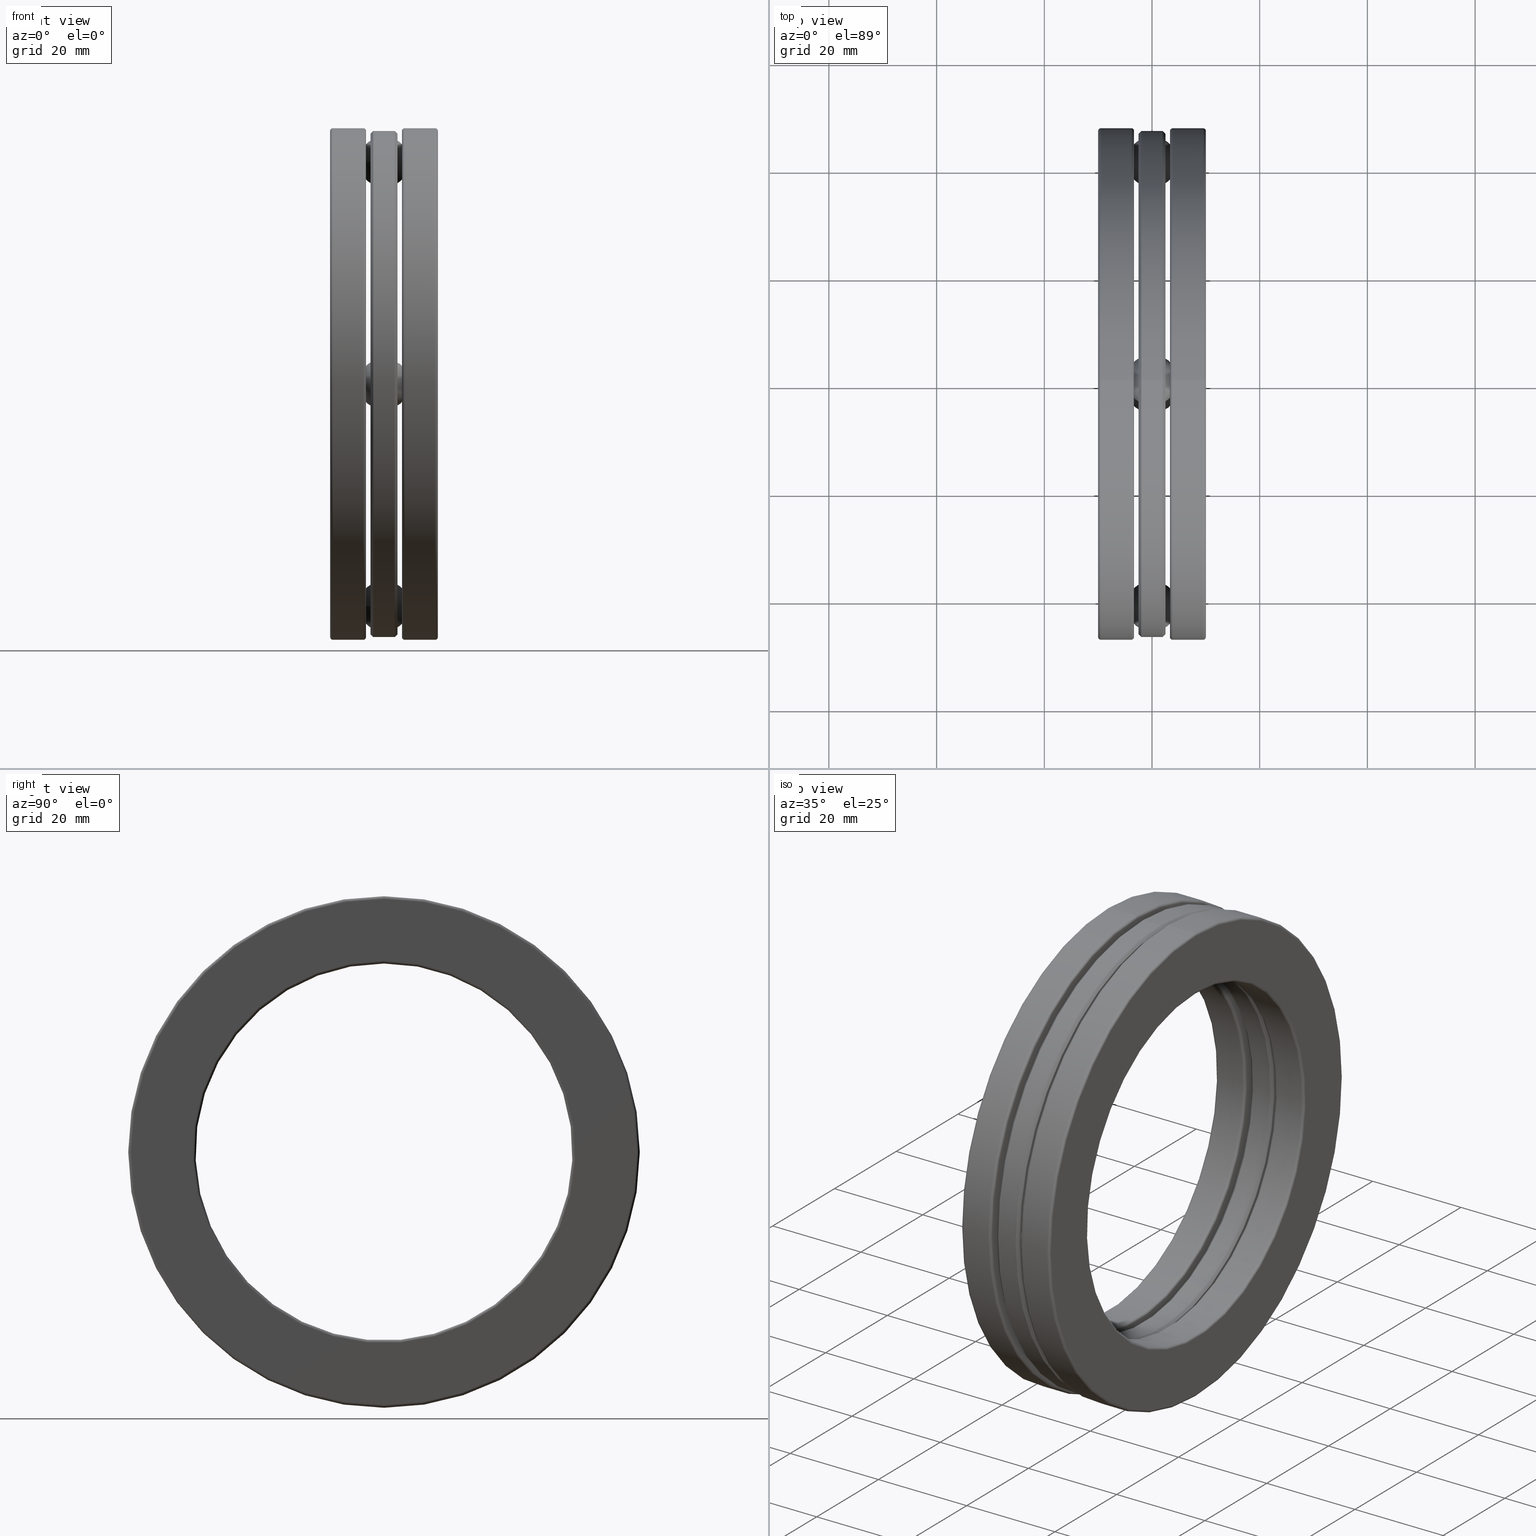
[diagram: canonical four-view strip — front | top / right | iso, engineering-drawing reading convention]
A machine part, canonical four-view strip (front | top / right | iso — engineering-drawing reading convention). The complete STEP part file that produces these views, byte-faithful:
ISO-10303-21;
HEADER;
FILE_DESCRIPTION (( 'STEP AP203' ),
    '1' );
FILE_NAME ('2914-ABB.step',
    '2017-03-07T16:43:06',
    ( '' ),
    ( '' ),
    'SwSTEP 2.0',
    'SolidWorks 2017',
    '' );
FILE_SCHEMA (( 'CONFIG_CONTROL_DESIGN' ));
ENDSEC;

DATA;
#1 = AXIS2_PLACEMENT_3D ( 'NONE', #358, #103, #351 ) ;
#2 = PLANE ( 'NONE',  #735 ) ;
#3 = DIRECTION ( 'NONE',  ( -1.000000000000000000, -0.0000000000000000000, -0.0000000000000000000 ) ) ;
#4 = PERSON_AND_ORGANIZATION_ROLE ( 'creator' ) ;
#5 = DIRECTION ( 'NONE',  ( -1.000000000000000000, -0.0000000000000000000, -0.0000000000000000000 ) ) ;
#6 = DATE_AND_TIME ( #235, #801 ) ;
#7 = EDGE_CURVE ( 'NONE', #555, #555, #88, .T. ) ;
#8 = CYLINDRICAL_SURFACE ( 'NONE', #291, 1.870000000000000300 ) ;
#9 = FACE_OUTER_BOUND ( 'NONE', #281, .T. ) ;
#10 = DATE_TIME_ROLE ( 'creation_date' ) ;
#11 = CARTESIAN_POINT ( 'NONE',  ( -0.09837499999999997600, 1.701049708284374600E-014, 1.623999999999999900 ) ) ;
#12 = ORIENTED_EDGE ( 'NONE', *, *, #140, .F. ) ;
#13 = EDGE_LOOP ( 'NONE', ( #195 ) ) ;
#14 = AXIS2_PLACEMENT_3D ( 'NONE', #399, #263, #327 ) ;
#15 = CARTESIAN_POINT ( 'NONE',  ( 0.09837500000000001800, -1.623999999999999900, 0.1925000000000000000 ) ) ;
#16 = CARTESIAN_POINT ( 'NONE',  ( 0.3735000000000006600, 0.0000000000000000000, 0.0000000000000000000 ) ) ;
#17 = ADVANCED_FACE ( 'NONE', ( ), #144, .T. ) ;
#18 = VERTEX_POINT ( 'NONE', #251 ) ;
#19 = DIRECTION ( 'NONE',  ( -1.000000000000000000, -0.0000000000000000000, -0.0000000000000000000 ) ) ;
#20 = CIRCLE ( 'NONE', #494, 1.850000000000000300 ) ;
#21 = EDGE_CURVE ( 'NONE', #286, #286, #718, .T. ) ;
#22 = DIRECTION ( 'NONE',  ( 0.0000000000000000000, 0.0000000000000000000, -1.000000000000000000 ) ) ;
#23 = ORIENTED_EDGE ( 'NONE', *, *, #338, .F. ) ;
#24 = DIRECTION ( 'NONE',  ( 0.0000000000000000000, 0.0000000000000000000, 1.000000000000000000 ) ) ;
#25 = EDGE_CURVE ( 'NONE', #723, #723, #731, .T. ) ;
#26 = LENGTH_MEASURE_WITH_UNIT ( LENGTH_MEASURE( 0.02539999999999999900 ), #245 );
#27 = CIRCLE ( 'NONE', #33, 1.377999999999999900 ) ;
#28 = CIRCLE ( 'NONE', #222, 1.829999999999999600 ) ;
#29 = DIRECTION ( 'NONE',  ( 0.0000000000000000000, 0.0000000000000000000, -1.000000000000000000 ) ) ;
#30 = CC_DESIGN_PERSON_AND_ORGANIZATION_ASSIGNMENT ( #278, #4, ( #773 ) ) ;
#31 = EDGE_LOOP ( 'NONE', ( #47 ) ) ;
#32 = EDGE_LOOP ( 'NONE', ( #599 ) ) ;
#33 = AXIS2_PLACEMENT_3D ( 'NONE', #268, #470, #343 ) ;
#34 = FACE_BOUND ( 'NONE', #732, .T. ) ;
#35 = CALENDAR_DATE ( 2017, 7, 3 ) ;
#36 = FACE_OUTER_BOUND ( 'NONE', #378, .T. ) ;
#37 = DIRECTION ( 'NONE',  ( -1.000000000000000000, -0.0000000000000000000, -0.0000000000000000000 ) ) ;
#38 = ORIENTED_EDGE ( 'NONE', *, *, #370, .F. ) ;
#39 = EDGE_LOOP ( 'NONE', ( #164 ) ) ;
#40 = DIRECTION ( 'NONE',  ( 0.0000000000000000000, 0.0000000000000000000, 1.000000000000000000 ) ) ;
#41 = AXIS2_PLACEMENT_3D ( 'NONE', #498, #495, #568 ) ;
#42 = DIRECTION ( 'NONE',  ( -1.000000000000000000, 0.0000000000000000000, 0.0000000000000000000 ) ) ;
#43 = ADVANCED_FACE ( 'NONE', ( #98, #575 ), #454, .F. ) ;
#44 = VERTEX_POINT ( 'NONE', #69 ) ;
#45 = FACE_OUTER_BOUND ( 'NONE', #708, .T. ) ;
#46 = AXIS2_PLACEMENT_3D ( 'NONE', #436, #119, #639 ) ;
#47 = ORIENTED_EDGE ( 'NONE', *, *, #282, .F. ) ;
#48 = DIRECTION ( 'NONE',  ( -1.000000000000000000, -0.0000000000000000000, -0.0000000000000000000 ) ) ;
#49 = CLOSED_SHELL ( 'NONE', ( #17 ) ) ;
#50 = DIRECTION ( 'NONE',  ( -1.000000000000000000, -0.0000000000000000000, -0.0000000000000000000 ) ) ;
#51 = AXIS2_PLACEMENT_3D ( 'NONE', #402, #663, #22 ) ;
#52 = FACE_OUTER_BOUND ( 'NONE', #154, .T. ) ;
#53 = CALENDAR_DATE ( 2017, 7, 3 ) ;
#54 = CYLINDRICAL_SURFACE ( 'NONE', #523, 1.397999999999999900 ) ;
#55 = TOROIDAL_SURFACE ( 'NONE', #747, 1.397999999999999900, 0.02000000000000000700 ) ;
#56 = DIRECTION ( 'NONE',  ( -1.000000000000000000, -0.0000000000000000000, -0.0000000000000000000 ) ) ;
#57 = CARTESIAN_POINT ( 'NONE',  ( 0.0000000000000000000, 0.0000000000000000000, 0.0000000000000000000 ) ) ;
#58 = AXIS2_PLACEMENT_3D ( 'NONE', #259, #649, #702 ) ;
#59 = ORIENTED_EDGE ( 'NONE', *, *, #432, .T. ) ;
#60 = DIRECTION ( 'NONE',  ( 1.000000000000000000, 0.0000000000000000000, 0.0000000000000000000 ) ) ;
#61 = EDGE_CURVE ( 'NONE', #621, #621, #400, .T. ) ;
#62 = ADVANCED_FACE ( 'NONE', ( #477, #424 ), #630, .F. ) ;
#63 = MECHANICAL_CONTEXT ( 'NONE', #124, 'mechanical' ) ;
#64 = FACE_BOUND ( 'NONE', #728, .T. ) ;
#65 = FACE_OUTER_BOUND ( 'NONE', #39, .T. ) ;
#66 = PERSON_AND_ORGANIZATION_ROLE ( 'creator' ) ;
#67 = EDGE_LOOP ( 'NONE', ( #740 ) ) ;
#68 = CC_DESIGN_DATE_AND_TIME_ASSIGNMENT ( #811, #10, ( #773 ) ) ;
#69 = CARTESIAN_POINT ( 'NONE',  ( 0.1511692900000004800, 0.0000000000000000000, 1.870000000000000300 ) ) ;
#70 = DIRECTION ( 'NONE',  ( 1.000000000000000000, 0.0000000000000000000, 0.0000000000000000000 ) ) ;
#71 = CARTESIAN_POINT ( 'NONE',  ( -0.09837499999999999000, 0.0000000000000000000, 1.417999999999999900 ) ) ;
#72 = CARTESIAN_POINT ( 'NONE',  ( 0.3735000000000007200, 0.0000000000000000000, 0.0000000000000000000 ) ) ;
#73 = DATE_AND_TIME ( #53, #189 ) ;
#74 = EDGE_CURVE ( 'NONE', #95, #95, #696, .T. ) ;
#75 = CARTESIAN_POINT ( 'NONE',  ( -0.1311692899999999700, 0.0000000000000000000, 1.849999999999999900 ) ) ;
#76 = ORIENTED_EDGE ( 'NONE', *, *, #680, .T. ) ;
#77 = DIRECTION ( 'NONE',  ( -1.000000000000000000, -0.0000000000000000000, -0.0000000000000000000 ) ) ;
#78 = CARTESIAN_POINT ( 'NONE',  ( 0.0000000000000000000, 0.0000000000000000000, 0.0000000000000000000 ) ) ;
#79 = TOROIDAL_SURFACE ( 'NONE', #80, 1.397999999999999700, 0.01999999999999992400 ) ;
#80 = AXIS2_PLACEMENT_3D ( 'NONE', #675, #481, #224 ) ;
#81 = ORIENTED_EDGE ( 'NONE', *, *, #274, .F. ) ;
#82 = ORIENTED_EDGE ( 'NONE', *, *, #617, .F. ) ;
#83 = AXIS2_PLACEMENT_3D ( 'NONE', #782, #596, #480 ) ;
#84 = FACE_BOUND ( 'NONE', #112, .T. ) ;
#85 = PERSON_AND_ORGANIZATION ( #722, #612 ) ;
#86 = EDGE_CURVE ( 'NONE', #262, #262, #795, .T. ) ;
#87 = CC_DESIGN_PERSON_AND_ORGANIZATION_ASSIGNMENT ( #139, #186, ( #662 ) ) ;
#88 = CIRCLE ( 'NONE', #793, 1.849999999999999600 ) ;
#89 = ORIENTED_EDGE ( 'NONE', *, *, #155, .F. ) ;
#90 = ADVANCED_FACE ( 'NONE', ( #767, #607 ), #386, .T. ) ;
#91 = EDGE_LOOP ( 'NONE', ( #82 ) ) ;
#92 = EDGE_CURVE ( 'NONE', #44, #44, #730, .T. ) ;
#93 = SHAPE_DEFINITION_REPRESENTATION ( #329, #614 ) ;
#94 = CARTESIAN_POINT ( 'NONE',  ( -0.3935393700787401800, -5.670165694281247900E-015, -1.623999999999999900 ) ) ;
#95 = VERTEX_POINT ( 'NONE', #746 ) ;
#96 = FACE_OUTER_BOUND ( 'NONE', #798, .T. ) ;
#97 = EDGE_CURVE ( 'NONE', #18, #18, #717, .T. ) ;
#98 = FACE_OUTER_BOUND ( 'NONE', #560, .T. ) ;
#99 = DIRECTION ( 'NONE',  ( 1.000000000000000000, 0.0000000000000000000, 0.0000000000000000000 ) ) ;
#100 = DIRECTION ( 'NONE',  ( 0.0000000000000000000, 0.0000000000000000000, 1.000000000000000000 ) ) ;
#101 = CLOSED_SHELL ( 'NONE', ( #688, #682, #90, #755, #678, #757, #62, #700, #742, #522, #514, #571 ) ) ;
#102 = EDGE_LOOP ( 'NONE', ( #76 ) ) ;
#103 = DIRECTION ( 'NONE',  ( -1.000000000000000000, -0.0000000000000000000, -0.0000000000000000000 ) ) ;
#104 = CARTESIAN_POINT ( 'NONE',  ( -0.1511692899999999600, 0.0000000000000000000, 0.0000000000000000000 ) ) ;
#105 = PRODUCT_DEFINITION_FORMATION_WITH_SPECIFIED_SOURCE ( 'ANY', '', #662, .NOT_KNOWN. ) ;
#106 = DIRECTION ( 'NONE',  ( -1.000000000000000000, -0.0000000000000000000, -0.0000000000000000000 ) ) ;
#107 = FACE_BOUND ( 'NONE', #91, .T. ) ;
#108 = VERTEX_POINT ( 'NONE', #128 ) ;
#109 = DIRECTION ( 'NONE',  ( 0.0000000000000000000, 0.0000000000000000000, 1.000000000000000000 ) ) ;
#110 = DIRECTION ( 'NONE',  ( 0.0000000000000000000, 0.0000000000000000000, 1.000000000000000000 ) ) ;
#111 = EDGE_CURVE ( 'NONE', #419, #419, #203, .T. ) ;
#112 = EDGE_LOOP ( 'NONE', ( #608 ) ) ;
#113 = DIRECTION ( 'NONE',  ( -1.000000000000000000, -0.0000000000000000000, -0.0000000000000000000 ) ) ;
#114 = EDGE_LOOP ( 'NONE', ( #466 ) ) ;
#115 = CARTESIAN_POINT ( 'NONE',  ( -0.09837499999999997600, 0.0000000000000000000, 0.0000000000000000000 ) ) ;
#116 = DIRECTION ( 'NONE',  ( -1.000000000000000000, -0.0000000000000000000, -0.0000000000000000000 ) ) ;
#117 = CONICAL_SURFACE ( 'NONE', #398, 1.829999999999999600, 0.7853981633974500600 ) ;
#118 = APPROVAL_DATE_TIME ( #656, #152 ) ;
#119 = DIRECTION ( 'NONE',  ( -1.000000000000000000, -0.0000000000000000000, -0.0000000000000000000 ) ) ;
#120 = FACE_OUTER_BOUND ( 'NONE', #32, .T. ) ;
#121 = PLANE ( 'NONE',  #135 ) ;
#122 = DIRECTION ( 'NONE',  ( 0.0000000000000000000, 0.0000000000000000000, 1.000000000000000000 ) ) ;
#123 = AXIS2_PLACEMENT_3D ( 'NONE', #677, #734, #565 ) ;
#124 = APPLICATION_CONTEXT ( 'configuration controlled 3d designs of mechanical parts and assemblies' ) ;
#125 = ORIENTED_EDGE ( 'NONE', *, *, #457, .F. ) ;
#126 = PERSON_AND_ORGANIZATION_ROLE ( 'design_supplier' ) ;
#127 = AXIS2_PLACEMENT_3D ( 'NONE', #570, #758, #376 ) ;
#128 = CARTESIAN_POINT ( 'NONE',  ( -0.3935000000000000700, 0.0000000000000000000, 1.850000000000000300 ) ) ;
#129 = CYLINDRICAL_SURFACE ( 'NONE', #671, 1.377999999999999900 ) ;
#130 = DIRECTION ( 'NONE',  ( 0.0000000000000000000, 1.000000000000000000, -9.933992704233683000E-015 ) ) ;
#131 = CIRCLE ( 'NONE', #46, 0.1925000000000000000 ) ;
#132 = CARTESIAN_POINT ( 'NONE',  ( 0.3735000000000006600, 0.0000000000000000000, 1.870000000000000300 ) ) ;
#133 = EDGE_LOOP ( 'NONE', ( #660 ) ) ;
#134 = EDGE_LOOP ( 'NONE', ( #439 ) ) ;
#135 = AXIS2_PLACEMENT_3D ( 'NONE', #638, #368, #579 ) ;
#136 = CARTESIAN_POINT ( 'NONE',  ( -0.1311692899999998300, 0.0000000000000000000, 1.397999999999999900 ) ) ;
#137 = CARTESIAN_POINT ( 'NONE',  ( -0.1311692899999998300, 0.0000000000000000000, 0.0000000000000000000 ) ) ;
#138 = FACE_OUTER_BOUND ( 'NONE', #377, .T. ) ;
#139 = PERSON_AND_ORGANIZATION ( #722, #612 ) ;
#140 = EDGE_CURVE ( 'NONE', #141, #141, #336, .T. ) ;
#141 = VERTEX_POINT ( 'NONE', #196 ) ;
#142 = FACE_OUTER_BOUND ( 'NONE', #615, .T. ) ;
#143 = CARTESIAN_POINT ( 'NONE',  ( 0.3735000000000006600, 0.0000000000000000000, 0.0000000000000000000 ) ) ;
#144 = SPHERICAL_SURFACE ( 'NONE', #280, 0.1875000000000001100 ) ;
#145 = EDGE_LOOP ( 'NONE', ( #365 ) ) ;
#146 = CARTESIAN_POINT ( 'NONE',  ( -0.1311692899999998800, 0.0000000000000000000, 0.0000000000000000000 ) ) ;
#147 = AXIS2_PLACEMENT_3D ( 'NONE', #252, #70, #130 ) ;
#148 = EDGE_CURVE ( 'NONE', #371, #371, #131, .T. ) ;
#149 = CONICAL_SURFACE ( 'NONE', #123, 1.417999999999999900, 0.7853981633974500600 ) ;
#150 = DATE_AND_TIME ( #35, #261 ) ;
#151 = FACE_OUTER_BOUND ( 'NONE', #427, .T. ) ;
#152 = APPROVAL ( #459, 'UNSPECIFIED' ) ;
#153 = CLOSED_SHELL ( 'NONE', ( #462, #710, #207, #428, #315, #762, #628, #175, #535, #576 ) ) ;
#154 = EDGE_LOOP ( 'NONE', ( #410 ) ) ;
#155 = EDGE_CURVE ( 'NONE', #760, #760, #551, .T. ) ;
#156 = DIRECTION ( 'NONE',  ( 0.0000000000000000000, 0.0000000000000000000, 1.000000000000000000 ) ) ;
#157 = APPROVAL_PERSON_ORGANIZATION ( #435, #810, #385 ) ;
#158 = VERTEX_POINT ( 'NONE', #388 ) ;
#159 = FACE_OUTER_BOUND ( 'NONE', #668, .T. ) ;
#160 = PLANE ( 'NONE',  #383 ) ;
#161 = CARTESIAN_POINT ( 'NONE',  ( -0.09837499999999997600, 1.623999999999999900, 0.0000000000000000000 ) ) ;
#162 = DIRECTION ( 'NONE',  ( 0.0000000000000000000, -1.000000000000000000, 2.838283629781052600E-015 ) ) ;
#163 = EDGE_LOOP ( 'NONE', ( #618 ) ) ;
#164 = ORIENTED_EDGE ( 'NONE', *, *, #345, .T. ) ;
#165 = CARTESIAN_POINT ( 'NONE',  ( 0.0000000000000000000, 0.0000000000000000000, 0.0000000000000000000 ) ) ;
#166 = DIRECTION ( 'NONE',  ( 0.0000000000000000000, 0.0000000000000000000, -1.000000000000000000 ) ) ;
#167 = AXIS2_PLACEMENT_3D ( 'NONE', #701, #60, #379 ) ;
#168 = CIRCLE ( 'NONE', #659, 1.397999999999999900 ) ;
#169 = EDGE_CURVE ( 'NONE', #673, #673, #28, .T. ) ;
#170 = CARTESIAN_POINT ( 'NONE',  ( -0.09837499999999997600, -1.623999999999999900, 0.0000000000000000000 ) ) ;
#171 = DIRECTION ( 'NONE',  ( -1.000000000000000000, -0.0000000000000000000, -0.0000000000000000000 ) ) ;
#172 = ADVANCED_FACE ( 'NONE', ( #464, #384 ), #476, .T. ) ;
#173 = ORIENTED_EDGE ( 'NONE', *, *, #274, .T. ) ;
#174 = EDGE_LOOP ( 'NONE', ( #698 ) ) ;
#175 = ADVANCED_FACE ( 'NONE', ( #65, #805 ), #397, .F. ) ;
#176 = DIRECTION ( 'NONE',  ( -1.000000000000000000, -0.0000000000000000000, -0.0000000000000000000 ) ) ;
#177 = CC_DESIGN_PERSON_AND_ORGANIZATION_ASSIGNMENT ( #85, #126, ( #105 ) ) ;
#178 = FACE_OUTER_BOUND ( 'NONE', #709, .T. ) ;
#179 = CIRCLE ( 'NONE', #83, 1.397999999999999900 ) ;
#180 = DIRECTION ( 'NONE',  ( 1.000000000000000000, 0.0000000000000000000, 0.0000000000000000000 ) ) ;
#181 = EDGE_CURVE ( 'NONE', #237, #237, #564, .T. ) ;
#182 = ORIENTED_EDGE ( 'NONE', *, *, #86, .T. ) ;
#183 = CARTESIAN_POINT ( 'NONE',  ( 0.1511692900000005700, 0.0000000000000000000, 1.377999999999999900 ) ) ;
#184 = DIRECTION ( 'NONE',  ( -1.000000000000000000, -0.0000000000000000000, -0.0000000000000000000 ) ) ;
#185 = AXIS2_PLACEMENT_3D ( 'NONE', #143, #211, #792 ) ;
#186 = PERSON_AND_ORGANIZATION_ROLE ( 'design_owner' ) ;
#187 = DIRECTION ( 'NONE',  ( 0.0000000000000000000, 1.000000000000000000, -1.135313451912421000E-014 ) ) ;
#188 = FACE_BOUND ( 'NONE', #814, .T. ) ;
#189 = LOCAL_TIME ( 11, 43, 6.000000000000000000, #538 ) ;
#190 = FACE_BOUND ( 'NONE', #478, .T. ) ;
#191 = PERSON_AND_ORGANIZATION_ROLE ( 'classification_officer' ) ;
#192 = DIRECTION ( 'NONE',  ( 0.0000000000000000000, 0.0000000000000000000, 1.000000000000000000 ) ) ;
#193 = EDGE_CURVE ( 'NONE', #703, #703, #786, .T. ) ;
#194 = CC_DESIGN_APPROVAL ( #810, ( #773 ) ) ;
#195 = ORIENTED_EDGE ( 'NONE', *, *, #689, .F. ) ;
#196 = CARTESIAN_POINT ( 'NONE',  ( -0.3934999999999999600, 0.0000000000000000000, 1.397999999999999700 ) ) ;
#197 = CLOSED_SHELL ( 'NONE', ( #43, #392, #172, #356, #250, #527, #367, #500, #444, #691 ) ) ;
#198 = CARTESIAN_POINT ( 'NONE',  ( -0.07837499999999998600, 0.0000000000000000000, 1.397999999999999900 ) ) ;
#199 = AXIS2_PLACEMENT_3D ( 'NONE', #443, #438, #369 ) ;
#200 = FACE_BOUND ( 'NONE', #346, .T. ) ;
#201 = CARTESIAN_POINT ( 'NONE',  ( -0.1511692899999999600, 0.0000000000000000000, 1.870000000000000100 ) ) ;
#202 = TOROIDAL_SURFACE ( 'NONE', #412, 1.623999999999999900, 0.1875000000000000800 ) ;
#203 = CIRCLE ( 'NONE', #775, 0.1925000000000000000 ) ;
#204 = DIMENSIONAL_EXPONENTS ( 1.000000000000000000, 0.0000000000000000000, 0.0000000000000000000, 0.0000000000000000000, 0.0000000000000000000, 0.0000000000000000000, 0.0000000000000000000 ) ;
#205 = ORIENTED_EDGE ( 'NONE', *, *, #181, .T. ) ;
#206 = PLANE ( 'NONE',  #739 ) ;
#207 = ADVANCED_FACE ( 'NONE', ( #765, #219 ), #273, .T. ) ;
#208 = MANIFOLD_SOLID_BREP ( 'CirPattern4[1]', #49 ) ;
#209 = DIRECTION ( 'NONE',  ( -1.000000000000000000, -0.0000000000000000000, -0.0000000000000000000 ) ) ;
#210 = CIRCLE ( 'NONE', #403, 1.850000000000000300 ) ;
#211 = DIRECTION ( 'NONE',  ( -1.000000000000000000, -0.0000000000000000000, -0.0000000000000000000 ) ) ;
#212 = EDGE_LOOP ( 'NONE', ( #326 ) ) ;
#213 = EDGE_CURVE ( 'NONE', #271, #271, #584, .T. ) ;
#214 = ORIENTED_EDGE ( 'NONE', *, *, #74, .T. ) ;
#215 = FACE_OUTER_BOUND ( 'NONE', #401, .T. ) ;
#216 = PERSON_AND_ORGANIZATION ( #722, #612 ) ;
#217 = FACE_OUTER_BOUND ( 'NONE', #102, .T. ) ;
#218 = CC_DESIGN_PERSON_AND_ORGANIZATION_ASSIGNMENT ( #487, #191, ( #364 ) ) ;
#219 = FACE_OUTER_BOUND ( 'NONE', #685, .T. ) ;
#220 = CARTESIAN_POINT ( 'NONE',  ( 0.0000000000000000000, -5.670165694281247900E-015, -1.623999999999999900 ) ) ;
#221 = ORIENTED_EDGE ( 'NONE', *, *, #411, .F. ) ;
#222 = AXIS2_PLACEMENT_3D ( 'NONE', #813, #50, #633 ) ;
#223 = DIRECTION ( 'NONE',  ( -1.000000000000000000, -0.0000000000000000000, -0.0000000000000000000 ) ) ;
#224 = DIRECTION ( 'NONE',  ( 0.0000000000000000000, 0.0000000000000000000, 1.000000000000000000 ) ) ;
#225 = VERTEX_POINT ( 'NONE', #716 ) ;
#226 = CYLINDRICAL_SURFACE ( 'NONE', #581, 0.1925000000000000000 ) ;
#227 = DIRECTION ( 'NONE',  ( 1.000000000000000000, 0.0000000000000000000, 0.0000000000000000000 ) ) ;
#228 = DIRECTION ( 'NONE',  ( 0.0000000000000000000, 0.0000000000000000000, 1.000000000000000000 ) ) ;
#229 = EDGE_LOOP ( 'NONE', ( #485 ) ) ;
#230 = DIRECTION ( 'NONE',  ( 0.0000000000000000000, 1.000000000000000000, -3.491481338843133400E-015 ) ) ;
#231 = ORIENTED_EDGE ( 'NONE', *, *, #140, .T. ) ;
#232 = DIRECTION ( 'NONE',  ( -1.000000000000000000, -0.0000000000000000000, -0.0000000000000000000 ) ) ;
#233 = AXIS2_PLACEMENT_3D ( 'NONE', #820, #176, #445 ) ;
#234 = PLANE ( 'NONE',  #632 ) ;
#235 = CALENDAR_DATE ( 2017, 7, 3 ) ;
#236 = DIRECTION ( 'NONE',  ( 0.0000000000000000000, 0.0000000000000000000, 1.000000000000000000 ) ) ;
#237 = VERTEX_POINT ( 'NONE', #394 ) ;
#238 = AXIS2_PLACEMENT_3D ( 'NONE', #504, #180, #507 ) ;
#239 = ORIENTED_EDGE ( 'NONE', *, *, #532, .T. ) ;
#240 = MANIFOLD_SOLID_BREP ( 'Revolve4', #566 ) ;
#241 = CARTESIAN_POINT ( 'NONE',  ( -0.07837499999999998600, 0.0000000000000000000, 1.849999999999999600 ) ) ;
#242 = ADVANCED_FACE ( 'NONE', ( ), #748, .T. ) ;
#243 = ORIENTED_EDGE ( 'NONE', *, *, #61, .T. ) ;
#244 = CARTESIAN_POINT ( 'NONE',  ( -0.09837499999999999000, 0.0000000000000000000, 0.0000000000000000000 ) ) ;
#245 =( LENGTH_UNIT ( ) NAMED_UNIT ( * ) SI_UNIT ( $, .METRE. ) );
#246 = DIRECTION ( 'NONE',  ( 1.000000000000000000, 0.0000000000000000000, 0.0000000000000000000 ) ) ;
#247 = CYLINDRICAL_SURFACE ( 'NONE', #502, 0.1925000000000000000 ) ;
#248 = DIRECTION ( 'NONE',  ( -1.000000000000000000, -0.0000000000000000000, -0.0000000000000000000 ) ) ;
#249 = AXIS2_PLACEMENT_3D ( 'NONE', #310, #759, #756 ) ;
#250 = ADVANCED_FACE ( 'NONE', ( #605, #9 ), #423, .T. ) ;
#251 = CARTESIAN_POINT ( 'NONE',  ( 0.3935000000000001300, 0.0000000000000000000, 1.397999999999999900 ) ) ;
#252 = CARTESIAN_POINT ( 'NONE',  ( 0.09837500000000001800, 1.701049708284374600E-014, 1.623999999999999900 ) ) ;
#253 = EDGE_LOOP ( 'NONE', ( #297 ) ) ;
#254 = EDGE_LOOP ( 'NONE', ( #491 ) ) ;
#255 = APPROVAL_STATUS ( 'not_yet_approved' ) ;
#256 = DIRECTION ( 'NONE',  ( 0.0000000000000000000, 0.0000000000000000000, 1.000000000000000000 ) ) ;
#257 = EDGE_CURVE ( 'NONE', #763, #763, #594, .T. ) ;
#258 = APPROVAL_ROLE ( '' ) ;
#259 = CARTESIAN_POINT ( 'NONE',  ( 0.07837499999999998600, 0.0000000000000000000, 0.0000000000000000000 ) ) ;
#260 = CONICAL_SURFACE ( 'NONE', #348, 1.849999999999999600, 0.7853981633974491700 ) ;
#261 = LOCAL_TIME ( 11, 43, 6.000000000000000000, #784 ) ;
#262 = VERTEX_POINT ( 'NONE', #652 ) ;
#263 = DIRECTION ( 'NONE',  ( 0.0000000000000000000, 0.0000000000000000000, 1.000000000000000000 ) ) ;
#264 = ORIENTED_EDGE ( 'NONE', *, *, #499, .T. ) ;
#265 = CARTESIAN_POINT ( 'NONE',  ( 0.09837500000000001800, 0.1925000000000169900, 1.623999999999998100 ) ) ;
#266 = ORIENTED_EDGE ( 'NONE', *, *, #155, .T. ) ;
#267 = DIRECTION ( 'NONE',  ( 0.0000000000000000000, 0.0000000000000000000, 1.000000000000000000 ) ) ;
#268 = CARTESIAN_POINT ( 'NONE',  ( -0.3734999999999999400, 0.0000000000000000000, 0.0000000000000000000 ) ) ;
#269 = AXIS2_PLACEMENT_3D ( 'NONE', #161, #223, #288 ) ;
#270 = VERTEX_POINT ( 'NONE', #136 ) ;
#271 = VERTEX_POINT ( 'NONE', #132 ) ;
#272 = CIRCLE ( 'NONE', #449, 0.1925000000000000000 ) ;
#273 = TOROIDAL_SURFACE ( 'NONE', #815, 1.849999999999999900, 0.02000000000000002500 ) ;
#274 = EDGE_CURVE ( 'NONE', #225, #225, #666, .T. ) ;
#275 = EDGE_LOOP ( 'NONE', ( #823 ) ) ;
#276 = EDGE_LOOP ( 'NONE', ( #408 ) ) ;
#277 = CC_DESIGN_APPROVAL ( #152, ( #105 ) ) ;
#278 = PERSON_AND_ORGANIZATION ( #722, #612 ) ;
#279 = EDGE_LOOP ( 'NONE', ( #214 ) ) ;
#280 = AXIS2_PLACEMENT_3D ( 'NONE', #220, #230, #42 ) ;
#281 = EDGE_LOOP ( 'NONE', ( #347 ) ) ;
#282 = EDGE_CURVE ( 'NONE', #451, #451, #350, .T. ) ;
#283 = APPROVAL_PERSON_ORGANIZATION ( #496, #442, #711 ) ;
#284 = DIRECTION ( 'NONE',  ( 0.0000000000000000000, 1.000000000000000000, -9.933992704233683000E-015 ) ) ;
#285 = FACE_BOUND ( 'NONE', #653, .T. ) ;
#286 = VERTEX_POINT ( 'NONE', #375 ) ;
#287 = FACE_BOUND ( 'NONE', #13, .T. ) ;
#288 = DIRECTION ( 'NONE',  ( 0.0000000000000000000, 0.0000000000000000000, -1.000000000000000000 ) ) ;
#289 = ORIENTED_EDGE ( 'NONE', *, *, #97, .T. ) ;
#290 = ORIENTED_EDGE ( 'NONE', *, *, #391, .T. ) ;
#291 = AXIS2_PLACEMENT_3D ( 'NONE', #561, #562, #629 ) ;
#292 = AXIS2_PLACEMENT_3D ( 'NONE', #574, #686, #110 ) ;
#293 = FACE_OUTER_BOUND ( 'NONE', #479, .T. ) ;
#294 = DIRECTION ( 'NONE',  ( -1.000000000000000000, -0.0000000000000000000, -0.0000000000000000000 ) ) ;
#295 = CARTESIAN_POINT ( 'NONE',  ( -0.1511692899999998200, 0.0000000000000000000, 0.0000000000000000000 ) ) ;
#296 = DIRECTION ( 'NONE',  ( 1.000000000000000000, 0.0000000000000000000, 0.0000000000000000000 ) ) ;
#297 = ORIENTED_EDGE ( 'NONE', *, *, #417, .F. ) ;
#298 = DIRECTION ( 'NONE',  ( -1.000000000000000000, -0.0000000000000000000, -0.0000000000000000000 ) ) ;
#299 = ORIENTED_EDGE ( 'NONE', *, *, #97, .F. ) ;
#300 = DIRECTION ( 'NONE',  ( 0.0000000000000000000, 0.0000000000000000000, 1.000000000000000000 ) ) ;
#301 = CC_DESIGN_APPROVAL ( #442, ( #364 ) ) ;
#302 = DIRECTION ( 'NONE',  ( 0.0000000000000000000, 0.0000000000000000000, 1.000000000000000000 ) ) ;
#303 = DIRECTION ( 'NONE',  ( 0.0000000000000000000, 0.0000000000000000000, -1.000000000000000000 ) ) ;
#304 = FACE_OUTER_BOUND ( 'NONE', #778, .T. ) ;
#305 = VERTEX_POINT ( 'NONE', #319 ) ;
#306 = CARTESIAN_POINT ( 'NONE',  ( 0.1511692900000005700, 0.0000000000000000000, 0.0000000000000000000 ) ) ;
#307 = VERTEX_POINT ( 'NONE', #201 ) ;
#308 = FACE_OUTER_BOUND ( 'NONE', #254, .T. ) ;
#309 = PRODUCT_RELATED_PRODUCT_CATEGORY ( 'detail', '', ( #662 ) ) ;
#310 = CARTESIAN_POINT ( 'NONE',  ( -0.3935393700787401800, 1.623999999999999900, 0.0000000000000000000 ) ) ;
#311 = DIRECTION ( 'NONE',  ( 0.0000000000000000000, 0.0000000000000000000, 1.000000000000000000 ) ) ;
#312 = EDGE_LOOP ( 'NONE', ( #299 ) ) ;
#313 = DIRECTION ( 'NONE',  ( 1.000000000000000000, 0.0000000000000000000, 0.0000000000000000000 ) ) ;
#314 = CARTESIAN_POINT ( 'NONE',  ( 0.0000000000000000000, 1.623999999999999900, 0.0000000000000000000 ) ) ;
#315 = ADVANCED_FACE ( 'NONE', ( #320, #405 ), #715, .T. ) ;
#316 = EDGE_CURVE ( 'NONE', #420, #420, #344, .T. ) ;
#317 = APPLICATION_PROTOCOL_DEFINITION ( 'international standard', 'config_control_design', 1994, #704 ) ;
#318 = DIRECTION ( 'NONE',  ( 0.0000000000000000000, 0.0000000000000000000, 1.000000000000000000 ) ) ;
#319 = CARTESIAN_POINT ( 'NONE',  ( 0.1311692900000004900, 0.0000000000000000000, 1.757980846992754000 ) ) ;
#320 = FACE_OUTER_BOUND ( 'NONE', #275, .T. ) ;
#321 = DIRECTION ( 'NONE',  ( -1.000000000000000000, -0.0000000000000000000, -0.0000000000000000000 ) ) ;
#322 = CC_DESIGN_PERSON_AND_ORGANIZATION_ASSIGNMENT ( #413, #66, ( #105 ) ) ;
#323 = CARTESIAN_POINT ( 'NONE',  ( 0.3735000000000007200, 0.0000000000000000000, 1.377999999999999900 ) ) ;
#324 = DIRECTION ( 'NONE',  ( -1.000000000000000000, -0.0000000000000000000, -0.0000000000000000000 ) ) ;
#325 = EDGE_LOOP ( 'NONE', ( #643 ) ) ;
#326 = ORIENTED_EDGE ( 'NONE', *, *, #86, .F. ) ;
#327 = DIRECTION ( 'NONE',  ( 1.000000000000000000, 0.0000000000000000000, 0.0000000000000000000 ) ) ;
#328 = AXIS2_PLACEMENT_3D ( 'NONE', #11, #654, #187 ) ;
#329 = PRODUCT_DEFINITION_SHAPE ( 'NONE', 'NONE',  #773 ) ;
#330 =( NAMED_UNIT ( * ) PLANE_ANGLE_UNIT ( ) SI_UNIT ( $, .RADIAN. ) );
#331 = DIRECTION ( 'NONE',  ( -1.000000000000000000, -0.0000000000000000000, -0.0000000000000000000 ) ) ;
#332 = FACE_BOUND ( 'NONE', #531, .T. ) ;
#333 = VERTEX_POINT ( 'NONE', #71 ) ;
#334 = CIRCLE ( 'NONE', #486, 1.490019153007245300 ) ;
#335 = MANIFOLD_SOLID_BREP ( 'CirPattern7', #101 ) ;
#336 = CIRCLE ( 'NONE', #586, 1.397999999999999700 ) ;
#337 = CARTESIAN_POINT ( 'NONE',  ( 0.0000000000000000000, 1.701049708284374600E-014, 1.623999999999999900 ) ) ;
#338 = EDGE_CURVE ( 'NONE', #488, #488, #540, .T. ) ;
#339 = ORIENTED_EDGE ( 'NONE', *, *, #92, .T. ) ;
#340 = EDGE_LOOP ( 'NONE', ( #243 ) ) ;
#341 = CARTESIAN_POINT ( 'NONE',  ( 0.0000000000000000000, 0.0000000000000000000, 0.0000000000000000000 ) ) ;
#342 = DIRECTION ( 'NONE',  ( -1.000000000000000000, -0.0000000000000000000, -0.0000000000000000000 ) ) ;
#343 = DIRECTION ( 'NONE',  ( 0.0000000000000000000, 0.0000000000000000000, 1.000000000000000000 ) ) ;
#344 = CIRCLE ( 'NONE', #637, 1.757980846992754700 ) ;
#345 = EDGE_CURVE ( 'NONE', #512, #512, #27, .T. ) ;
#346 = EDGE_LOOP ( 'NONE', ( #554 ) ) ;
#347 = ORIENTED_EDGE ( 'NONE', *, *, #282, .T. ) ;
#348 = AXIS2_PLACEMENT_3D ( 'NONE', #577, #818, #452 ) ;
#349 = FACE_BOUND ( 'NONE', #114, .T. ) ;
#350 = CIRCLE ( 'NONE', #508, 1.377999999999999900 ) ;
#351 = DIRECTION ( 'NONE',  ( 0.0000000000000000000, 0.0000000000000000000, 1.000000000000000000 ) ) ;
#352 = AXIS2_PLACEMENT_3D ( 'NONE', #548, #474, #606 ) ;
#353 = EDGE_LOOP ( 'NONE', ( #634 ) ) ;
#354 = CARTESIAN_POINT ( 'NONE',  ( -0.3935393700787401800, -1.623999999999999900, 0.0000000000000000000 ) ) ;
#355 = CARTESIAN_POINT ( 'NONE',  ( 0.1311692900000005800, 0.0000000000000000000, 0.0000000000000000000 ) ) ;
#356 = ADVANCED_FACE ( 'NONE', ( #705, #453 ), #129, .F. ) ;
#357 = AXIS2_PLACEMENT_3D ( 'NONE', #244, #171, #515 ) ;
#358 = CARTESIAN_POINT ( 'NONE',  ( 0.1311692900000004900, 0.0000000000000000000, 0.0000000000000000000 ) ) ;
#359 = CALENDAR_DATE ( 2017, 7, 3 ) ;
#360 = FACE_OUTER_BOUND ( 'NONE', #440, .T. ) ;
#361 = ORIENTED_EDGE ( 'NONE', *, *, #370, .T. ) ;
#362 = ORIENTED_EDGE ( 'NONE', *, *, #391, .F. ) ;
#363 = CARTESIAN_POINT ( 'NONE',  ( -0.1511692899999997900, 0.0000000000000000000, 0.0000000000000000000 ) ) ;
#364 = SECURITY_CLASSIFICATION ( '', '', #588 ) ;
#365 = ORIENTED_EDGE ( 'NONE', *, *, #21, .F. ) ;
#366 = CARTESIAN_POINT ( 'NONE',  ( -0.3934999999999999600, 0.0000000000000000000, 0.0000000000000000000 ) ) ;
#367 = ADVANCED_FACE ( 'NONE', ( #151, #648 ), #821, .T. ) ;
#368 = DIRECTION ( 'NONE',  ( 1.000000000000000000, 0.0000000000000000000, 0.0000000000000000000 ) ) ;
#369 = DIRECTION ( 'NONE',  ( 0.0000000000000000000, 0.0000000000000000000, 1.000000000000000000 ) ) ;
#370 = EDGE_CURVE ( 'NONE', #602, #602, #475, .T. ) ;
#371 = VERTEX_POINT ( 'NONE', #776 ) ;
#372 = DIRECTION ( 'NONE',  ( 1.000000000000000000, 0.0000000000000000000, 0.0000000000000000000 ) ) ;
#373 = FACE_OUTER_BOUND ( 'NONE', #67, .T. ) ;
#374 = DIRECTION ( 'NONE',  ( 0.0000000000000000000, 0.0000000000000000000, 1.000000000000000000 ) ) ;
#375 = CARTESIAN_POINT ( 'NONE',  ( -0.09837499999999997600, 1.623999999999999900, -0.1925000000000000000 ) ) ;
#376 = DIRECTION ( 'NONE',  ( 0.0000000000000000000, 0.0000000000000000000, 1.000000000000000000 ) ) ;
#377 = EDGE_LOOP ( 'NONE', ( #362 ) ) ;
#378 = EDGE_LOOP ( 'NONE', ( #642 ) ) ;
#379 = DIRECTION ( 'NONE',  ( 0.0000000000000000000, 0.0000000000000000000, -1.000000000000000000 ) ) ;
#380 = DIRECTION ( 'NONE',  ( 0.0000000000000000000, 0.0000000000000000000, -1.000000000000000000 ) ) ;
#381 = DIRECTION ( 'NONE',  ( 0.0000000000000000000, 0.0000000000000000000, 1.000000000000000000 ) ) ;
#382 = FACE_BOUND ( 'NONE', #791, .T. ) ;
#383 = AXIS2_PLACEMENT_3D ( 'NONE', #619, #227, #422 ) ;
#384 = FACE_OUTER_BOUND ( 'NONE', #456, .T. ) ;
#385 = APPROVAL_ROLE ( '' ) ;
#386 = CYLINDRICAL_SURFACE ( 'NONE', #549, 1.849999999999999600 ) ;
#387 = CLOSED_SHELL ( 'NONE', ( #446 ) ) ;
#388 = CARTESIAN_POINT ( 'NONE',  ( -0.1311692899999998800, 0.0000000000000000000, 1.490019153007245300 ) ) ;
#389 = ORIENTED_EDGE ( 'NONE', *, *, #7, .T. ) ;
#390 = CARTESIAN_POINT ( 'NONE',  ( -0.1311692899999999400, 0.0000000000000000000, 0.0000000000000000000 ) ) ;
#391 = EDGE_CURVE ( 'NONE', #414, #414, #179, .T. ) ;
#392 = ADVANCED_FACE ( 'NONE', ( #287, #36 ), #206, .F. ) ;
#393 = CARTESIAN_POINT ( 'NONE',  ( 0.07837500000000002800, 0.0000000000000000000, 1.397999999999999900 ) ) ;
#394 = CARTESIAN_POINT ( 'NONE',  ( -0.3735000000000000500, 0.0000000000000000000, 1.870000000000000100 ) ) ;
#395 = FACE_OUTER_BOUND ( 'NONE', #544, .T. ) ;
#396 = CARTESIAN_POINT ( 'NONE',  ( 0.3735000000000007200, 0.0000000000000000000, 0.0000000000000000000 ) ) ;
#397 = CYLINDRICAL_SURFACE ( 'NONE', #664, 1.377999999999999900 ) ;
#398 = AXIS2_PLACEMENT_3D ( 'NONE', #115, #372, #380 ) ;
#399 = CARTESIAN_POINT ( 'NONE',  ( 0.0000000000000000000, 0.0000000000000000000, 0.0000000000000000000 ) ) ;
#400 = CIRCLE ( 'NONE', #706, 1.377999999999999900 ) ;
#401 = EDGE_LOOP ( 'NONE', ( #59 ) ) ;
#402 = CARTESIAN_POINT ( 'NONE',  ( 0.09837500000000001800, 1.623999999999999900, 0.0000000000000000000 ) ) ;
#403 = AXIS2_PLACEMENT_3D ( 'NONE', #690, #695, #750 ) ;
#404 = DIRECTION ( 'NONE',  ( 0.0000000000000000000, 0.0000000000000000000, 1.000000000000000000 ) ) ;
#405 = FACE_OUTER_BOUND ( 'NONE', #597, .T. ) ;
#406 = DIRECTION ( 'NONE',  ( -1.000000000000000000, -0.0000000000000000000, -0.0000000000000000000 ) ) ;
#407 = AXIS2_PLACEMENT_3D ( 'NONE', #306, #752, #374 ) ;
#408 = ORIENTED_EDGE ( 'NONE', *, *, #689, .T. ) ;
#409 = DIRECTION ( 'NONE',  ( 1.000000000000000000, 0.0000000000000000000, 0.0000000000000000000 ) ) ;
#410 = ORIENTED_EDGE ( 'NONE', *, *, #21, .T. ) ;
#411 = EDGE_CURVE ( 'NONE', #657, #657, #20, .T. ) ;
#412 = AXIS2_PLACEMENT_3D ( 'NONE', #78, #790, #430 ) ;
#413 = PERSON_AND_ORGANIZATION ( #722, #612 ) ;
#414 = VERTEX_POINT ( 'NONE', #393 ) ;
#415 = EDGE_CURVE ( 'NONE', #333, #333, #683, .T. ) ;
#416 = ORIENTED_EDGE ( 'NONE', *, *, #316, .T. ) ;
#417 = EDGE_CURVE ( 'NONE', #270, #270, #168, .T. ) ;
#418 = MANIFOLD_SOLID_BREP ( 'Revolve1', #153 ) ;
#419 = VERTEX_POINT ( 'NONE', #15 ) ;
#420 = VERTEX_POINT ( 'NONE', #536 ) ;
#421 = CIRCLE ( 'NONE', #1, 1.757980846992754000 ) ;
#422 = DIRECTION ( 'NONE',  ( 0.0000000000000000000, 0.0000000000000000000, -1.000000000000000000 ) ) ;
#423 = TOROIDAL_SURFACE ( 'NONE', #627, 1.397999999999999900, 0.01999999999999971900 ) ;
#424 = FACE_OUTER_BOUND ( 'NONE', #229, .T. ) ;
#425 = DIRECTION ( 'NONE',  ( 1.000000000000000000, 0.0000000000000000000, 0.0000000000000000000 ) ) ;
#426 = AXIS2_PLACEMENT_3D ( 'NONE', #437, #313, #501 ) ;
#427 = EDGE_LOOP ( 'NONE', ( #816 ) ) ;
#428 = ADVANCED_FACE ( 'NONE', ( #120, #373 ), #785, .T. ) ;
#429 = ORIENTED_EDGE ( 'NONE', *, *, #338, .T. ) ;
#430 = DIRECTION ( 'NONE',  ( 0.0000000000000000000, 0.0000000000000000000, 1.000000000000000000 ) ) ;
#431 = CARTESIAN_POINT ( 'NONE',  ( -0.07837499999999998600, 0.0000000000000000000, 0.0000000000000000000 ) ) ;
#432 = EDGE_CURVE ( 'NONE', #802, #802, #812, .T. ) ;
#433 = PLANE ( 'NONE',  #788 ) ;
#434 = FACE_BOUND ( 'NONE', #567, .T. ) ;
#435 = PERSON_AND_ORGANIZATION ( #722, #612 ) ;
#436 = CARTESIAN_POINT ( 'NONE',  ( -0.09837499999999997600, -5.670165694281247900E-015, -1.623999999999999900 ) ) ;
#437 = CARTESIAN_POINT ( 'NONE',  ( 0.09837500000000001800, 0.0000000000000000000, 0.0000000000000000000 ) ) ;
#438 = DIRECTION ( 'NONE',  ( -1.000000000000000000, -0.0000000000000000000, -0.0000000000000000000 ) ) ;
#439 = ORIENTED_EDGE ( 'NONE', *, *, #569, .F. ) ;
#440 = EDGE_LOOP ( 'NONE', ( #661 ) ) ;
#441 = CARTESIAN_POINT ( 'NONE',  ( -0.1311692899999998600, -3.963877895098056400E-017, 0.0000000000000000000 ) ) ;
#442 = APPROVAL ( #255, 'UNSPECIFIED' ) ;
#443 = CARTESIAN_POINT ( 'NONE',  ( -0.09837499999999997600, 0.0000000000000000000, 0.0000000000000000000 ) ) ;
#444 = ADVANCED_FACE ( 'NONE', ( #308, #142 ), #513, .T. ) ;
#445 = DIRECTION ( 'NONE',  ( 0.0000000000000000000, 0.0000000000000000000, 1.000000000000000000 ) ) ;
#446 = ADVANCED_FACE ( 'NONE', ( ), #674, .T. ) ;
#447 = DIRECTION ( 'NONE',  ( 0.0000000000000000000, 0.0000000000000000000, 1.000000000000000000 ) ) ;
#448 = CIRCLE ( 'NONE', #233, 1.397999999999999900 ) ;
#449 = AXIS2_PLACEMENT_3D ( 'NONE', #170, #623, #492 ) ;
#450 = FACE_OUTER_BOUND ( 'NONE', #753, .T. ) ;
#451 = VERTEX_POINT ( 'NONE', #323 ) ;
#452 = DIRECTION ( 'NONE',  ( 0.0000000000000000000, 0.0000000000000000000, 1.000000000000000000 ) ) ;
#453 = FACE_OUTER_BOUND ( 'NONE', #31, .T. ) ;
#454 = TOROIDAL_SURFACE ( 'NONE', #598, 1.623999999999999900, 0.1875000000000001100 ) ;
#455 = APPLICATION_PROTOCOL_DEFINITION ( 'international standard', 'config_control_design', 1994, #124 ) ;
#456 = EDGE_LOOP ( 'NONE', ( #720 ) ) ;
#457 = EDGE_CURVE ( 'NONE', #158, #158, #334, .T. ) ;
#458 = EDGE_LOOP ( 'NONE', ( #651 ) ) ;
#459 = APPROVAL_STATUS ( 'not_yet_approved' ) ;
#460 = CARTESIAN_POINT ( 'NONE',  ( 0.1311692900000005800, 0.0000000000000000000, 1.397999999999999900 ) ) ;
#461 = DIRECTION ( 'NONE',  ( -1.000000000000000000, -0.0000000000000000000, -0.0000000000000000000 ) ) ;
#462 = ADVANCED_FACE ( 'NONE', ( #622, #736 ), #202, .F. ) ;
#463 = AXIS2_PLACEMENT_3D ( 'NONE', #741, #743, #807 ) ;
#464 = FACE_OUTER_BOUND ( 'NONE', #276, .T. ) ;
#465 = CARTESIAN_POINT ( 'NONE',  ( -0.3735000000000000500, 0.0000000000000000000, 0.0000000000000000000 ) ) ;
#466 = ORIENTED_EDGE ( 'NONE', *, *, #432, .F. ) ;
#467 = CARTESIAN_POINT ( 'NONE',  ( 0.09837500000000001800, 0.0000000000000000000, 1.829999999999999600 ) ) ;
#468 = EDGE_LOOP ( 'NONE', ( #289 ) ) ;
#469 = AXIS2_PLACEMENT_3D ( 'NONE', #16, #645, #192 ) ;
#470 = DIRECTION ( 'NONE',  ( -1.000000000000000000, -0.0000000000000000000, -0.0000000000000000000 ) ) ;
#471 = FACE_OUTER_BOUND ( 'NONE', #279, .T. ) ;
#472 = LOCAL_TIME ( 11, 43, 6.000000000000000000, #794 ) ;
#473 = VERTEX_POINT ( 'NONE', #644 ) ;
#474 = DIRECTION ( 'NONE',  ( -1.000000000000000000, -0.0000000000000000000, -0.0000000000000000000 ) ) ;
#475 = CIRCLE ( 'NONE', #719, 1.849999999999999900 ) ;
#476 = TOROIDAL_SURFACE ( 'NONE', #407, 1.397999999999999900, 0.02000000000000002500 ) ;
#477 = FACE_BOUND ( 'NONE', #533, .T. ) ;
#478 = EDGE_LOOP ( 'NONE', ( #789 ) ) ;
#479 = EDGE_LOOP ( 'NONE', ( #125 ) ) ;
#480 = DIRECTION ( 'NONE',  ( 0.0000000000000000000, 0.0000000000000000000, 1.000000000000000000 ) ) ;
#481 = DIRECTION ( 'NONE',  ( -1.000000000000000000, -0.0000000000000000000, -0.0000000000000000000 ) ) ;
#482 = FACE_OUTER_BOUND ( 'NONE', #738, .T. ) ;
#483 = AXIS2_PLACEMENT_3D ( 'NONE', #465, #184, #585 ) ;
#484 = ORIENTED_EDGE ( 'NONE', *, *, #193, .F. ) ;
#485 = ORIENTED_EDGE ( 'NONE', *, *, #415, .T. ) ;
#486 = AXIS2_PLACEMENT_3D ( 'NONE', #146, #209, #733 ) ;
#487 = PERSON_AND_ORGANIZATION ( #722, #612 ) ;
#488 = VERTEX_POINT ( 'NONE', #265 ) ;
#489 = FACE_OUTER_BOUND ( 'NONE', #553, .T. ) ;
#490 = AXIS2_PLACEMENT_3D ( 'NONE', #341, #19, #404 ) ;
#491 = ORIENTED_EDGE ( 'NONE', *, *, #257, .F. ) ;
#492 = DIRECTION ( 'NONE',  ( 0.0000000000000000000, 0.0000000000000000000, 1.000000000000000000 ) ) ;
#493 = DIRECTION ( 'NONE',  ( -1.000000000000000000, -0.0000000000000000000, -0.0000000000000000000 ) ) ;
#494 = AXIS2_PLACEMENT_3D ( 'NONE', #601, #331, #267 ) ;
#495 = DIRECTION ( 'NONE',  ( -0.0000000000000000000, 0.0000000000000000000, -1.000000000000000000 ) ) ;
#496 = PERSON_AND_ORGANIZATION ( #722, #612 ) ;
#497 = SPHERICAL_SURFACE ( 'NONE', #41, 0.1875000000000001100 ) ;
#498 = CARTESIAN_POINT ( 'NONE',  ( 0.0000000000000000000, -1.623999999999999900, 0.0000000000000000000 ) ) ;
#499 = EDGE_CURVE ( 'NONE', #603, #603, #550, .T. ) ;
#500 = ADVANCED_FACE ( 'NONE', ( #764, #803 ), #8, .T. ) ;
#501 = DIRECTION ( 'NONE',  ( 0.0000000000000000000, 0.0000000000000000000, -1.000000000000000000 ) ) ;
#502 = AXIS2_PLACEMENT_3D ( 'NONE', #354, #558, #228 ) ;
#503 = ORIENTED_EDGE ( 'NONE', *, *, #316, .F. ) ;
#504 = CARTESIAN_POINT ( 'NONE',  ( 0.09837500000000001800, -5.670165694281247900E-015, -1.623999999999999900 ) ) ;
#505 = ORIENTED_EDGE ( 'NONE', *, *, #25, .F. ) ;
#506 = DIRECTION ( 'NONE',  ( 0.0000000000000000000, 0.0000000000000000000, -1.000000000000000000 ) ) ;
#507 = DIRECTION ( 'NONE',  ( 0.0000000000000000000, -1.000000000000000000, 2.838283629781052600E-015 ) ) ;
#508 = AXIS2_PLACEMENT_3D ( 'NONE', #396, #321, #530 ) ;
#509 = PLANE ( 'NONE',  #426 ) ;
#510 = FACE_BOUND ( 'NONE', #145, .T. ) ;
#511 = DIRECTION ( 'NONE',  ( -1.000000000000000000, -0.0000000000000000000, -0.0000000000000000000 ) ) ;
#512 = VERTEX_POINT ( 'NONE', #528 ) ;
#513 = TOROIDAL_SURFACE ( 'NONE', #352, 1.850000000000000300, 0.02000000000000004200 ) ;
#514 = ADVANCED_FACE ( 'NONE', ( #360, #96 ), #247, .F. ) ;
#515 = DIRECTION ( 'NONE',  ( 0.0000000000000000000, 0.0000000000000000000, 1.000000000000000000 ) ) ;
#516 = ORIENTED_EDGE ( 'NONE', *, *, #169, .F. ) ;
#517 = ORIENTED_EDGE ( 'NONE', *, *, #799, .F. ) ;
#518 = CLOSED_SHELL ( 'NONE', ( #529 ) ) ;
#519 = MANIFOLD_SOLID_BREP ( 'CirPattern4[3]', #387 ) ;
#520 = CARTESIAN_POINT ( 'NONE',  ( -0.09837499999999997600, 0.1925000000000169900, 1.623999999999997700 ) ) ;
#521 = CARTESIAN_POINT ( 'NONE',  ( 0.1311692900000004700, 0.0000000000000000000, 0.0000000000000000000 ) ) ;
#522 = ADVANCED_FACE ( 'NONE', ( #489, #482 ), #226, .F. ) ;
#523 = AXIS2_PLACEMENT_3D ( 'NONE', #699, #822, #109 ) ;
#524 = CARTESIAN_POINT ( 'NONE',  ( 0.1311692900000004700, 0.0000000000000000000, 1.850000000000000300 ) ) ;
#525 = FACE_BOUND ( 'NONE', #468, .T. ) ;
#526 = DIRECTION ( 'NONE',  ( -1.000000000000000000, -0.0000000000000000000, -0.0000000000000000000 ) ) ;
#527 = ADVANCED_FACE ( 'NONE', ( #525, #640 ), #433, .T. ) ;
#528 = CARTESIAN_POINT ( 'NONE',  ( -0.3734999999999999400, 0.0000000000000000000, 1.377999999999999900 ) ) ;
#529 = ADVANCED_FACE ( 'NONE', ( ), #497, .T. ) ;
#530 = DIRECTION ( 'NONE',  ( 0.0000000000000000000, 0.0000000000000000000, 1.000000000000000000 ) ) ;
#531 = EDGE_LOOP ( 'NONE', ( #264 ) ) ;
#532 = EDGE_CURVE ( 'NONE', #473, #473, #272, .T. ) ;
#533 = EDGE_LOOP ( 'NONE', ( #517 ) ) ;
#534 = CARTESIAN_POINT ( 'NONE',  ( 0.09837500000000001800, -0.1925000000000056700, -1.623999999999999400 ) ) ;
#535 = ADVANCED_FACE ( 'NONE', ( #725, #583 ), #55, .T. ) ;
#536 = CARTESIAN_POINT ( 'NONE',  ( -0.1311692899999999400, 0.0000000000000000000, 1.757980846992754700 ) ) ;
#537 = CARTESIAN_POINT ( 'NONE',  ( -0.1311692899999999700, 0.0000000000000000000, 0.0000000000000000000 ) ) ;
#538 = COORDINATED_UNIVERSAL_TIME_OFFSET ( 5, 0, .BEHIND. ) ;
#539 = CC_DESIGN_SECURITY_CLASSIFICATION ( #364, ( #105 ) ) ;
#540 = CIRCLE ( 'NONE', #147, 0.1925000000000000000 ) ;
#541 = DIRECTION ( 'NONE',  ( 0.0000000000000000000, 0.0000000000000000000, 1.000000000000000000 ) ) ;
#542 = ORIENTED_EDGE ( 'NONE', *, *, #457, .T. ) ;
#543 = DIRECTION ( 'NONE',  ( 0.0000000000000000000, -1.000000000000000000, 1.047444401652940000E-014 ) ) ;
#544 = EDGE_LOOP ( 'NONE', ( #616 ) ) ;
#545 = AXIS2_PLACEMENT_3D ( 'NONE', #635, #56, #300 ) ;
#546 = CYLINDRICAL_SURFACE ( 'NONE', #249, 0.1925000000000000000 ) ;
#547 = APPROVAL_PERSON_ORGANIZATION ( #216, #152, #258 ) ;
#548 = CARTESIAN_POINT ( 'NONE',  ( 0.1511692900000004800, 0.0000000000000000000, 0.0000000000000000000 ) ) ;
#549 = AXIS2_PLACEMENT_3D ( 'NONE', #57, #511, #636 ) ;
#550 = CIRCLE ( 'NONE', #463, 1.417999999999999900 ) ;
#551 = CIRCLE ( 'NONE', #238, 0.1925000000000000000 ) ;
#552 = ORIENTED_EDGE ( 'NONE', *, *, #415, .F. ) ;
#553 = EDGE_LOOP ( 'NONE', ( #429 ) ) ;
#554 = ORIENTED_EDGE ( 'NONE', *, *, #111, .F. ) ;
#555 = VERTEX_POINT ( 'NONE', #241 ) ;
#556 = FACE_OUTER_BOUND ( 'NONE', #458, .T. ) ;
#557 = AXIS2_PLACEMENT_3D ( 'NONE', #355, #493, #100 ) ;
#558 = DIRECTION ( 'NONE',  ( 1.000000000000000000, 0.0000000000000000000, 0.0000000000000000000 ) ) ;
#559 = ORIENTED_EDGE ( 'NONE', *, *, #169, .T. ) ;
#560 = EDGE_LOOP ( 'NONE', ( #770 ) ) ;
#561 = CARTESIAN_POINT ( 'NONE',  ( 0.0000000000000000000, 0.0000000000000000000, 0.0000000000000000000 ) ) ;
#562 = DIRECTION ( 'NONE',  ( -1.000000000000000000, -0.0000000000000000000, -0.0000000000000000000 ) ) ;
#563 = FACE_OUTER_BOUND ( 'NONE', #684, .T. ) ;
#564 = CIRCLE ( 'NONE', #483, 1.870000000000000100 ) ;
#565 = DIRECTION ( 'NONE',  ( 0.0000000000000000000, 0.0000000000000000000, -1.000000000000000000 ) ) ;
#566 = CLOSED_SHELL ( 'NONE', ( #242 ) ) ;
#567 = EDGE_LOOP ( 'NONE', ( #484 ) ) ;
#568 = DIRECTION ( 'NONE',  ( -1.000000000000000000, 0.0000000000000000000, 0.0000000000000000000 ) ) ;
#569 = EDGE_CURVE ( 'NONE', #307, #307, #694, .T. ) ;
#570 = CARTESIAN_POINT ( 'NONE',  ( 0.3935000000000001300, 0.0000000000000000000, 0.0000000000000000000 ) ) ;
#571 = ADVANCED_FACE ( 'NONE', ( #563, #556 ), #658, .F. ) ;
#572 = VERTEX_POINT ( 'NONE', #460 ) ;
#573 = CARTESIAN_POINT ( 'NONE',  ( 0.1311692900000004900, 3.468393158210838700E-017, 0.0000000000000000000 ) ) ;
#574 = CARTESIAN_POINT ( 'NONE',  ( 0.1511692900000004800, 0.0000000000000000000, 0.0000000000000000000 ) ) ;
#575 = FACE_OUTER_BOUND ( 'NONE', #797, .T. ) ;
#576 = ADVANCED_FACE ( 'NONE', ( #190, #293 ), #160, .T. ) ;
#577 = CARTESIAN_POINT ( 'NONE',  ( 0.07837499999999998600, 0.0000000000000000000, 0.0000000000000000000 ) ) ;
#578 = EDGE_LOOP ( 'NONE', ( #626 ) ) ;
#579 = DIRECTION ( 'NONE',  ( 0.0000000000000000000, 0.0000000000000000000, -1.000000000000000000 ) ) ;
#580 = UNCERTAINTY_MEASURE_WITH_UNIT (LENGTH_MEASURE( 1.000000000000000100E-005 ), #655, 'distance_accuracy_value', 'NONE');
#581 = AXIS2_PLACEMENT_3D ( 'NONE', #804, #625, #284 ) ;
#582 = CARTESIAN_POINT ( 'NONE',  ( 0.1311692900000005800, 0.0000000000000000000, 1.490019153007245700 ) ) ;
#583 = FACE_OUTER_BOUND ( 'NONE', #676, .T. ) ;
#584 = CIRCLE ( 'NONE', #469, 1.870000000000000300 ) ;
#585 = DIRECTION ( 'NONE',  ( 0.0000000000000000000, 0.0000000000000000000, 1.000000000000000000 ) ) ;
#586 = AXIS2_PLACEMENT_3D ( 'NONE', #366, #106, #302 ) ;
#587 = EDGE_LOOP ( 'NONE', ( #552 ) ) ;
#588 = SECURITY_CLASSIFICATION_LEVEL ( 'unclassified' ) ;
#589 = EDGE_LOOP ( 'NONE', ( #416 ) ) ;
#590 = DIRECTION ( 'NONE',  ( -1.000000000000000000, 0.0000000000000000000, 0.0000000000000000000 ) ) ;
#591 = CALENDAR_DATE ( 2017, 7, 3 ) ;
#592 = CARTESIAN_POINT ( 'NONE',  ( 0.3934999999999999600, 0.0000000000000000000, 1.850000000000000300 ) ) ;
#593 = DIRECTION ( 'NONE',  ( 0.0000000000000000000, 0.0000000000000000000, 1.000000000000000000 ) ) ;
#594 = CIRCLE ( 'NONE', #650, 1.850000000000000300 ) ;
#595 = CARTESIAN_POINT ( 'NONE',  ( 0.09837500000000001800, 0.0000000000000000000, 1.417999999999999900 ) ) ;
#596 = DIRECTION ( 'NONE',  ( -1.000000000000000000, -0.0000000000000000000, -0.0000000000000000000 ) ) ;
#597 = EDGE_LOOP ( 'NONE', ( #205 ) ) ;
#598 = AXIS2_PLACEMENT_3D ( 'NONE', #165, #37, #236 ) ;
#599 = ORIENTED_EDGE ( 'NONE', *, *, #181, .F. ) ;
#600 = DIRECTION ( 'NONE',  ( 0.0000000000000000000, 0.0000000000000000000, 1.000000000000000000 ) ) ;
#601 = CARTESIAN_POINT ( 'NONE',  ( 0.3934999999999999600, 0.0000000000000000000, 0.0000000000000000000 ) ) ;
#602 = VERTEX_POINT ( 'NONE', #75 ) ;
#603 = VERTEX_POINT ( 'NONE', #595 ) ;
#604 = FACE_OUTER_BOUND ( 'NONE', #174, .T. ) ;
#605 = FACE_OUTER_BOUND ( 'NONE', #312, .T. ) ;
#606 = DIRECTION ( 'NONE',  ( 0.0000000000000000000, 0.0000000000000000000, 1.000000000000000000 ) ) ;
#607 = FACE_OUTER_BOUND ( 'NONE', #163, .T. ) ;
#608 = ORIENTED_EDGE ( 'NONE', *, *, #148, .F. ) ;
#609 = ORIENTED_EDGE ( 'NONE', *, *, #193, .T. ) ;
#610 = AXIS2_PLACEMENT_3D ( 'NONE', #721, #77, #541 ) ;
#611 = FACE_OUTER_BOUND ( 'NONE', #727, .T. ) ;
#612 = ORGANIZATION ( 'UNSPECIFIED', 'UNSPECIFIED', '' ) ;
#613 = AXIS2_PLACEMENT_3D ( 'NONE', #314, #381, #590 ) ;
#614 = ADVANCED_BREP_SHAPE_REPRESENTATION ( '2914-ABB', ( #418, #749, #240, #208, #737, #519, #335, #14 ), #796 ) ;
#615 = EDGE_LOOP ( 'NONE', ( #339 ) ) ;
#616 = ORIENTED_EDGE ( 'NONE', *, *, #799, .T. ) ;
#617 = EDGE_CURVE ( 'NONE', #305, #305, #421, .T. ) ;
#618 = ORIENTED_EDGE ( 'NONE', *, *, #7, .F. ) ;
#619 = CARTESIAN_POINT ( 'NONE',  ( -0.1311692899999998600, -3.963877895098056400E-017, 0.0000000000000000000 ) ) ;
#620 = VERTEX_POINT ( 'NONE', #198 ) ;
#621 = VERTEX_POINT ( 'NONE', #183 ) ;
#622 = FACE_OUTER_BOUND ( 'NONE', #824, .T. ) ;
#623 = DIRECTION ( 'NONE',  ( -1.000000000000000000, -0.0000000000000000000, -0.0000000000000000000 ) ) ;
#624 = AXIS2_PLACEMENT_3D ( 'NONE', #104, #232, #40 ) ;
#625 = DIRECTION ( 'NONE',  ( 1.000000000000000000, 0.0000000000000000000, 0.0000000000000000000 ) ) ;
#626 = ORIENTED_EDGE ( 'NONE', *, *, #92, .F. ) ;
#627 = AXIS2_PLACEMENT_3D ( 'NONE', #72, #3, #256 ) ;
#628 = ADVANCED_FACE ( 'NONE', ( #159, #604 ), #79, .T. ) ;
#629 = DIRECTION ( 'NONE',  ( 0.0000000000000000000, 0.0000000000000000000, 1.000000000000000000 ) ) ;
#630 = CONICAL_SURFACE ( 'NONE', #357, 1.417999999999999900, 0.7853981633974496100 ) ;
#631 = DESIGN_CONTEXT ( 'detailed design', #704, 'design' ) ;
#632 = AXIS2_PLACEMENT_3D ( 'NONE', #441, #296, #303 ) ;
#633 = DIRECTION ( 'NONE',  ( 0.0000000000000000000, 0.0000000000000000000, 1.000000000000000000 ) ) ;
#634 = ORIENTED_EDGE ( 'NONE', *, *, #411, .T. ) ;
#635 = CARTESIAN_POINT ( 'NONE',  ( 0.1311692900000005800, 0.0000000000000000000, 0.0000000000000000000 ) ) ;
#636 = DIRECTION ( 'NONE',  ( 0.0000000000000000000, 0.0000000000000000000, 1.000000000000000000 ) ) ;
#637 = AXIS2_PLACEMENT_3D ( 'NONE', #390, #461, #777 ) ;
#638 = CARTESIAN_POINT ( 'NONE',  ( -0.3935000000000000700, -5.945697928688527000E-017, 0.0000000000000000000 ) ) ;
#639 = DIRECTION ( 'NONE',  ( 0.0000000000000000000, -1.000000000000000000, 4.257425444671579300E-015 ) ) ;
#640 = FACE_OUTER_BOUND ( 'NONE', #751, .T. ) ;
#641 = CARTESIAN_POINT ( 'NONE',  ( 0.09837500000000001800, -1.623999999999999900, 0.0000000000000000000 ) ) ;
#642 = ORIENTED_EDGE ( 'NONE', *, *, #25, .T. ) ;
#643 = ORIENTED_EDGE ( 'NONE', *, *, #213, .T. ) ;
#644 = CARTESIAN_POINT ( 'NONE',  ( -0.09837499999999997600, -1.623999999999999900, 0.1925000000000000000 ) ) ;
#645 = DIRECTION ( 'NONE',  ( -1.000000000000000000, -0.0000000000000000000, -0.0000000000000000000 ) ) ;
#646 = DATE_TIME_ROLE ( 'classification_date' ) ;
#647 = CARTESIAN_POINT ( 'NONE',  ( -0.1511692899999999600, 0.0000000000000000000, 0.0000000000000000000 ) ) ;
#648 = FACE_OUTER_BOUND ( 'NONE', #353, .T. ) ;
#649 = DIRECTION ( 'NONE',  ( -1.000000000000000000, -0.0000000000000000000, -0.0000000000000000000 ) ) ;
#650 = AXIS2_PLACEMENT_3D ( 'NONE', #521, #324, #774 ) ;
#651 = ORIENTED_EDGE ( 'NONE', *, *, #148, .T. ) ;
#652 = CARTESIAN_POINT ( 'NONE',  ( -0.1511692899999998200, 0.0000000000000000000, 1.377999999999999900 ) ) ;
#653 = EDGE_LOOP ( 'NONE', ( #559 ) ) ;
#654 = DIRECTION ( 'NONE',  ( -1.000000000000000000, -0.0000000000000000000, -0.0000000000000000000 ) ) ;
#655 =( CONVERSION_BASED_UNIT ( 'INCH', #26 ) LENGTH_UNIT ( ) NAMED_UNIT ( #204 ) );
#656 = DATE_AND_TIME ( #359, #819 ) ;
#657 = VERTEX_POINT ( 'NONE', #592 ) ;
#658 = CYLINDRICAL_SURFACE ( 'NONE', #726, 0.1925000000000000000 ) ;
#659 = AXIS2_PLACEMENT_3D ( 'NONE', #137, #342, #600 ) ;
#660 = ORIENTED_EDGE ( 'NONE', *, *, #74, .F. ) ;
#661 = ORIENTED_EDGE ( 'NONE', *, *, #111, .T. ) ;
#662 = PRODUCT ( '2914-ABB', '2914-ABB', '', ( #63 ) ) ;
#663 = DIRECTION ( 'NONE',  ( 1.000000000000000000, -0.0000000000000000000, 0.0000000000000000000 ) ) ;
#664 = AXIS2_PLACEMENT_3D ( 'NONE', #817, #113, #593 ) ;
#665 = COORDINATED_UNIVERSAL_TIME_OFFSET ( 5, 0, .BEHIND. ) ;
#666 = CIRCLE ( 'NONE', #58, 1.849999999999999600 ) ;
#667 = EDGE_LOOP ( 'NONE', ( #173 ) ) ;
#668 = EDGE_LOOP ( 'NONE', ( #231 ) ) ;
#669 = AXIS2_PLACEMENT_3D ( 'NONE', #337, #543, #787 ) ;
#670 = FACE_BOUND ( 'NONE', #133, .T. ) ;
#671 = AXIS2_PLACEMENT_3D ( 'NONE', #712, #526, #724 ) ;
#672 = FACE_OUTER_BOUND ( 'NONE', #769, .T. ) ;
#673 = VERTEX_POINT ( 'NONE', #467 ) ;
#674 = SPHERICAL_SURFACE ( 'NONE', #669, 0.1875000000000001100 ) ;
#675 = CARTESIAN_POINT ( 'NONE',  ( -0.3734999999999999400, 0.0000000000000000000, 0.0000000000000000000 ) ) ;
#676 = EDGE_LOOP ( 'NONE', ( #182 ) ) ;
#677 = CARTESIAN_POINT ( 'NONE',  ( 0.09837500000000001800, 0.0000000000000000000, 0.0000000000000000000 ) ) ;
#678 = ADVANCED_FACE ( 'NONE', ( #64, #45 ), #149, .F. ) ;
#679 = DIRECTION ( 'NONE',  ( 0.0000000000000000000, 0.0000000000000000000, 1.000000000000000000 ) ) ;
#680 = EDGE_CURVE ( 'NONE', #108, #108, #210, .T. ) ;
#681 = APPROVAL_DATE_TIME ( #73, #442 ) ;
#682 = ADVANCED_FACE ( 'NONE', ( #285, #450 ), #260, .T. ) ;
#683 = CIRCLE ( 'NONE', #610, 1.417999999999999900 ) ;
#684 = EDGE_LOOP ( 'NONE', ( #266 ) ) ;
#685 = EDGE_LOOP ( 'NONE', ( #361 ) ) ;
#686 = DIRECTION ( 'NONE',  ( -1.000000000000000000, -0.0000000000000000000, -0.0000000000000000000 ) ) ;
#687 = EDGE_LOOP ( 'NONE', ( #503 ) ) ;
#688 = ADVANCED_FACE ( 'NONE', ( #672, #670 ), #117, .T. ) ;
#689 = EDGE_CURVE ( 'NONE', #572, #572, #783, .T. ) ;
#690 = CARTESIAN_POINT ( 'NONE',  ( -0.3935000000000000700, 0.0000000000000000000, 0.0000000000000000000 ) ) ;
#691 = ADVANCED_FACE ( 'NONE', ( #107, #611 ), #2, .F. ) ;
#692 = PLANE ( 'NONE',  #167 ) ;
#693 = APPROVAL_DATE_TIME ( #150, #810 ) ;
#694 = CIRCLE ( 'NONE', #624, 1.870000000000000100 ) ;
#695 = DIRECTION ( 'NONE',  ( -1.000000000000000000, -0.0000000000000000000, -0.0000000000000000000 ) ) ;
#696 = CIRCLE ( 'NONE', #199, 1.829999999999999600 ) ;
#697 = DIRECTION ( 'NONE',  ( 0.0000000000000000000, 0.0000000000000000000, 1.000000000000000000 ) ) ;
#698 = ORIENTED_EDGE ( 'NONE', *, *, #345, .F. ) ;
#699 = CARTESIAN_POINT ( 'NONE',  ( 0.0000000000000000000, 0.0000000000000000000, 0.0000000000000000000 ) ) ;
#700 = ADVANCED_FACE ( 'NONE', ( #84, #188, #434, #510, #800, #471 ), #692, .F. ) ;
#701 = CARTESIAN_POINT ( 'NONE',  ( -0.09837499999999997600, 4.076843846734258400E-018, 0.0000000000000000000 ) ) ;
#702 = DIRECTION ( 'NONE',  ( 0.0000000000000000000, 0.0000000000000000000, 1.000000000000000000 ) ) ;
#703 = VERTEX_POINT ( 'NONE', #520 ) ;
#704 = APPLICATION_CONTEXT ( 'configuration controlled 3d designs of mechanical parts and assemblies' ) ;
#705 = FACE_OUTER_BOUND ( 'NONE', #340, .T. ) ;
#706 = AXIS2_PLACEMENT_3D ( 'NONE', #761, #116, #447 ) ;
#707 = CARTESIAN_POINT ( 'NONE',  ( 0.09837500000000001800, 1.623999999999999900, -0.1925000000000000000 ) ) ;
#708 = EDGE_LOOP ( 'NONE', ( #772 ) ) ;
#709 = EDGE_LOOP ( 'NONE', ( #38 ) ) ;
#710 = ADVANCED_FACE ( 'NONE', ( #714, #178 ), #234, .T. ) ;
#711 = APPROVAL_ROLE ( '' ) ;
#712 = CARTESIAN_POINT ( 'NONE',  ( 0.0000000000000000000, 0.0000000000000000000, 0.0000000000000000000 ) ) ;
#713 = CC_DESIGN_DATE_AND_TIME_ASSIGNMENT ( #6, #646, ( #364 ) ) ;
#714 = FACE_BOUND ( 'NONE', #589, .T. ) ;
#715 = TOROIDAL_SURFACE ( 'NONE', #754, 1.850000000000000300, 0.01999999999999988900 ) ;
#716 = CARTESIAN_POINT ( 'NONE',  ( 0.07837499999999998600, 0.0000000000000000000, 1.849999999999999600 ) ) ;
#717 = CIRCLE ( 'NONE', #127, 1.397999999999999900 ) ;
#718 = CIRCLE ( 'NONE', #269, 0.1925000000000000000 ) ;
#719 = AXIS2_PLACEMENT_3D ( 'NONE', #537, #406, #24 ) ;
#720 = ORIENTED_EDGE ( 'NONE', *, *, #61, .F. ) ;
#721 = CARTESIAN_POINT ( 'NONE',  ( -0.09837499999999999000, 0.0000000000000000000, 0.0000000000000000000 ) ) ;
#722 = PERSON ( 'UNSPECIFIED', 'UNSPECIFIED', 'UNSPECIFIED', ('UNSPECIFIED'), ('UNSPECIFIED'), ('UNSPECIFIED') ) ;
#723 = VERTEX_POINT ( 'NONE', #582 ) ;
#724 = DIRECTION ( 'NONE',  ( 0.0000000000000000000, 0.0000000000000000000, 1.000000000000000000 ) ) ;
#725 = FACE_OUTER_BOUND ( 'NONE', #253, .T. ) ;
#726 = AXIS2_PLACEMENT_3D ( 'NONE', #94, #99, #162 ) ;
#727 = EDGE_LOOP ( 'NONE', ( #779 ) ) ;
#728 = EDGE_LOOP ( 'NONE', ( #290 ) ) ;
#729 = AXIS2_PLACEMENT_3D ( 'NONE', #295, #298, #311 ) ;
#730 = CIRCLE ( 'NONE', #292, 1.870000000000000300 ) ;
#731 = CIRCLE ( 'NONE', #557, 1.490019153007245700 ) ;
#732 = EDGE_LOOP ( 'NONE', ( #23 ) ) ;
#733 = DIRECTION ( 'NONE',  ( 0.0000000000000000000, 0.0000000000000000000, 1.000000000000000000 ) ) ;
#734 = DIRECTION ( 'NONE',  ( 1.000000000000000000, 0.0000000000000000000, 0.0000000000000000000 ) ) ;
#735 = AXIS2_PLACEMENT_3D ( 'NONE', #573, #766, #506 ) ;
#736 = FACE_OUTER_BOUND ( 'NONE', #687, .T. ) ;
#737 = MANIFOLD_SOLID_BREP ( 'CirPattern4[2]', #518 ) ;
#738 = EDGE_LOOP ( 'NONE', ( #609 ) ) ;
#739 = AXIS2_PLACEMENT_3D ( 'NONE', #781, #409, #29 ) ;
#740 = ORIENTED_EDGE ( 'NONE', *, *, #569, .T. ) ;
#741 = CARTESIAN_POINT ( 'NONE',  ( 0.09837500000000001800, 0.0000000000000000000, 0.0000000000000000000 ) ) ;
#742 = ADVANCED_FACE ( 'NONE', ( #215, #52 ), #546, .F. ) ;
#743 = DIRECTION ( 'NONE',  ( -1.000000000000000000, -0.0000000000000000000, -0.0000000000000000000 ) ) ;
#744 = FACE_BOUND ( 'NONE', #806, .T. ) ;
#745 = COORDINATED_UNIVERSAL_TIME_OFFSET ( 5, 0, .BEHIND. ) ;
#746 = CARTESIAN_POINT ( 'NONE',  ( -0.09837499999999997600, 0.0000000000000000000, 1.829999999999999600 ) ) ;
#747 = AXIS2_PLACEMENT_3D ( 'NONE', #363, #294, #679 ) ;
#748 = SPHERICAL_SURFACE ( 'NONE', #613, 0.1875000000000001100 ) ;
#749 = MANIFOLD_SOLID_BREP ( 'Revolve3', #197 ) ;
#750 = DIRECTION ( 'NONE',  ( 0.0000000000000000000, 0.0000000000000000000, 1.000000000000000000 ) ) ;
#751 = EDGE_LOOP ( 'NONE', ( #221 ) ) ;
#752 = DIRECTION ( 'NONE',  ( -1.000000000000000000, -0.0000000000000000000, -0.0000000000000000000 ) ) ;
#753 = EDGE_LOOP ( 'NONE', ( #81 ) ) ;
#754 = AXIS2_PLACEMENT_3D ( 'NONE', #768, #5, #122 ) ;
#755 = ADVANCED_FACE ( 'NONE', ( #744, #200, #34, #349, #332, #304 ), #509, .T. ) ;
#756 = DIRECTION ( 'NONE',  ( 0.0000000000000000000, 0.0000000000000000000, -1.000000000000000000 ) ) ;
#757 = ADVANCED_FACE ( 'NONE', ( #138, #395 ), #54, .F. ) ;
#758 = DIRECTION ( 'NONE',  ( -1.000000000000000000, -0.0000000000000000000, -0.0000000000000000000 ) ) ;
#759 = DIRECTION ( 'NONE',  ( 1.000000000000000000, -0.0000000000000000000, -0.0000000000000000000 ) ) ;
#760 = VERTEX_POINT ( 'NONE', #534 ) ;
#761 = CARTESIAN_POINT ( 'NONE',  ( 0.1511692900000005700, 0.0000000000000000000, 0.0000000000000000000 ) ) ;
#762 = ADVANCED_FACE ( 'NONE', ( #382, #217 ), #121, .F. ) ;
#763 = VERTEX_POINT ( 'NONE', #524 ) ;
#764 = FACE_OUTER_BOUND ( 'NONE', #578, .T. ) ;
#765 = FACE_OUTER_BOUND ( 'NONE', #134, .T. ) ;
#766 = DIRECTION ( 'NONE',  ( 1.000000000000000000, 0.0000000000000000000, 0.0000000000000000000 ) ) ;
#767 = FACE_OUTER_BOUND ( 'NONE', #667, .T. ) ;
#768 = CARTESIAN_POINT ( 'NONE',  ( -0.3735000000000000500, 0.0000000000000000000, 0.0000000000000000000 ) ) ;
#769 = EDGE_LOOP ( 'NONE', ( #389 ) ) ;
#770 = ORIENTED_EDGE ( 'NONE', *, *, #617, .T. ) ;
#771 = APPROVAL_STATUS ( 'not_yet_approved' ) ;
#772 = ORIENTED_EDGE ( 'NONE', *, *, #499, .F. ) ;
#773 = PRODUCT_DEFINITION ( 'UNKNOWN', '', #105, #631 ) ;
#774 = DIRECTION ( 'NONE',  ( 0.0000000000000000000, 0.0000000000000000000, 1.000000000000000000 ) ) ;
#775 = AXIS2_PLACEMENT_3D ( 'NONE', #641, #246, #697 ) ;
#776 = CARTESIAN_POINT ( 'NONE',  ( -0.09837499999999997600, -0.1925000000000056700, -1.623999999999999200 ) ) ;
#777 = DIRECTION ( 'NONE',  ( 0.0000000000000000000, 0.0000000000000000000, 1.000000000000000000 ) ) ;
#778 = EDGE_LOOP ( 'NONE', ( #516 ) ) ;
#779 = ORIENTED_EDGE ( 'NONE', *, *, #257, .T. ) ;
#780 =( NAMED_UNIT ( * ) SI_UNIT ( $, .STERADIAN. ) SOLID_ANGLE_UNIT ( ) );
#781 = CARTESIAN_POINT ( 'NONE',  ( 0.1311692900000004900, 3.468393158210838700E-017, 0.0000000000000000000 ) ) ;
#782 = CARTESIAN_POINT ( 'NONE',  ( 0.07837500000000002800, 0.0000000000000000000, 0.0000000000000000000 ) ) ;
#783 = CIRCLE ( 'NONE', #545, 1.397999999999999900 ) ;
#784 = COORDINATED_UNIVERSAL_TIME_OFFSET ( 5, 0, .BEHIND. ) ;
#785 = CYLINDRICAL_SURFACE ( 'NONE', #490, 1.870000000000000100 ) ;
#786 = CIRCLE ( 'NONE', #328, 0.1925000000000000000 ) ;
#787 = DIRECTION ( 'NONE',  ( -1.000000000000000000, 0.0000000000000000000, 0.0000000000000000000 ) ) ;
#788 = AXIS2_PLACEMENT_3D ( 'NONE', #809, #425, #166 ) ;
#789 = ORIENTED_EDGE ( 'NONE', *, *, #417, .T. ) ;
#790 = DIRECTION ( 'NONE',  ( -1.000000000000000000, -0.0000000000000000000, -0.0000000000000000000 ) ) ;
#791 = EDGE_LOOP ( 'NONE', ( #12 ) ) ;
#792 = DIRECTION ( 'NONE',  ( 0.0000000000000000000, 0.0000000000000000000, 1.000000000000000000 ) ) ;
#793 = AXIS2_PLACEMENT_3D ( 'NONE', #431, #48, #156 ) ;
#794 = COORDINATED_UNIVERSAL_TIME_OFFSET ( 5, 0, .BEHIND. ) ;
#795 = CIRCLE ( 'NONE', #729, 1.377999999999999900 ) ;
#796 =( GEOMETRIC_REPRESENTATION_CONTEXT ( 3 ) GLOBAL_UNCERTAINTY_ASSIGNED_CONTEXT ( ( #580 ) ) GLOBAL_UNIT_ASSIGNED_CONTEXT ( ( #655, #330, #780 ) ) REPRESENTATION_CONTEXT ( 'NONE', 'WORKASPACE' ) );
#797 = EDGE_LOOP ( 'NONE', ( #505 ) ) ;
#798 = EDGE_LOOP ( 'NONE', ( #239 ) ) ;
#799 = EDGE_CURVE ( 'NONE', #620, #620, #448, .T. ) ;
#800 = FACE_BOUND ( 'NONE', #587, .T. ) ;
#801 = LOCAL_TIME ( 11, 43, 6.000000000000000000, #745 ) ;
#802 = VERTEX_POINT ( 'NONE', #707 ) ;
#803 = FACE_OUTER_BOUND ( 'NONE', #325, .T. ) ;
#804 = CARTESIAN_POINT ( 'NONE',  ( -0.3935393700787401800, 1.701049708284374600E-014, 1.623999999999999900 ) ) ;
#805 = FACE_OUTER_BOUND ( 'NONE', #212, .T. ) ;
#806 = EDGE_LOOP ( 'NONE', ( #89 ) ) ;
#807 = DIRECTION ( 'NONE',  ( 0.0000000000000000000, 0.0000000000000000000, 1.000000000000000000 ) ) ;
#808 = ORIENTED_EDGE ( 'NONE', *, *, #532, .F. ) ;
#809 = CARTESIAN_POINT ( 'NONE',  ( 0.3935000000000000700, 1.189139585737708400E-016, 0.0000000000000000000 ) ) ;
#810 = APPROVAL ( #771, 'UNSPECIFIED' ) ;
#811 = DATE_AND_TIME ( #591, #472 ) ;
#812 = CIRCLE ( 'NONE', #51, 0.1925000000000000000 ) ;
#813 = CARTESIAN_POINT ( 'NONE',  ( 0.09837500000000001800, 0.0000000000000000000, 0.0000000000000000000 ) ) ;
#814 = EDGE_LOOP ( 'NONE', ( #808 ) ) ;
#815 = AXIS2_PLACEMENT_3D ( 'NONE', #647, #248, #318 ) ;
#816 = ORIENTED_EDGE ( 'NONE', *, *, #213, .F. ) ;
#817 = CARTESIAN_POINT ( 'NONE',  ( 0.0000000000000000000, 0.0000000000000000000, 0.0000000000000000000 ) ) ;
#818 = DIRECTION ( 'NONE',  ( -1.000000000000000000, -0.0000000000000000000, -0.0000000000000000000 ) ) ;
#819 = LOCAL_TIME ( 11, 43, 6.000000000000000000, #665 ) ;
#820 = CARTESIAN_POINT ( 'NONE',  ( -0.07837499999999998600, 0.0000000000000000000, 0.0000000000000000000 ) ) ;
#821 = TOROIDAL_SURFACE ( 'NONE', #185, 1.850000000000000300, 0.01999999999999968500 ) ;
#822 = DIRECTION ( 'NONE',  ( -1.000000000000000000, -0.0000000000000000000, -0.0000000000000000000 ) ) ;
#823 = ORIENTED_EDGE ( 'NONE', *, *, #680, .F. ) ;
#824 = EDGE_LOOP ( 'NONE', ( #542 ) ) ;
ENDSEC;
END-ISO-10303-21;
